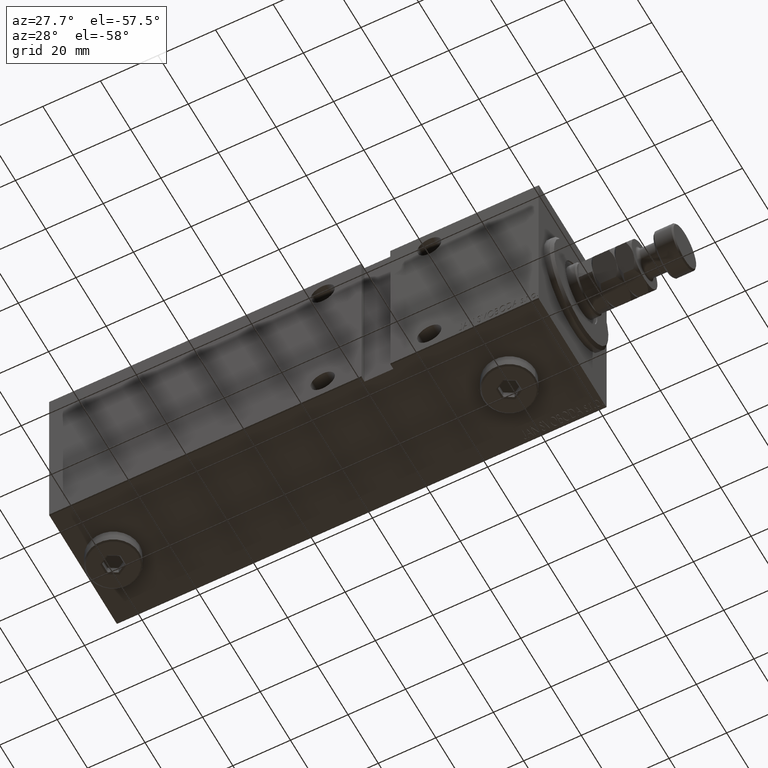
[diagram: clean part render]
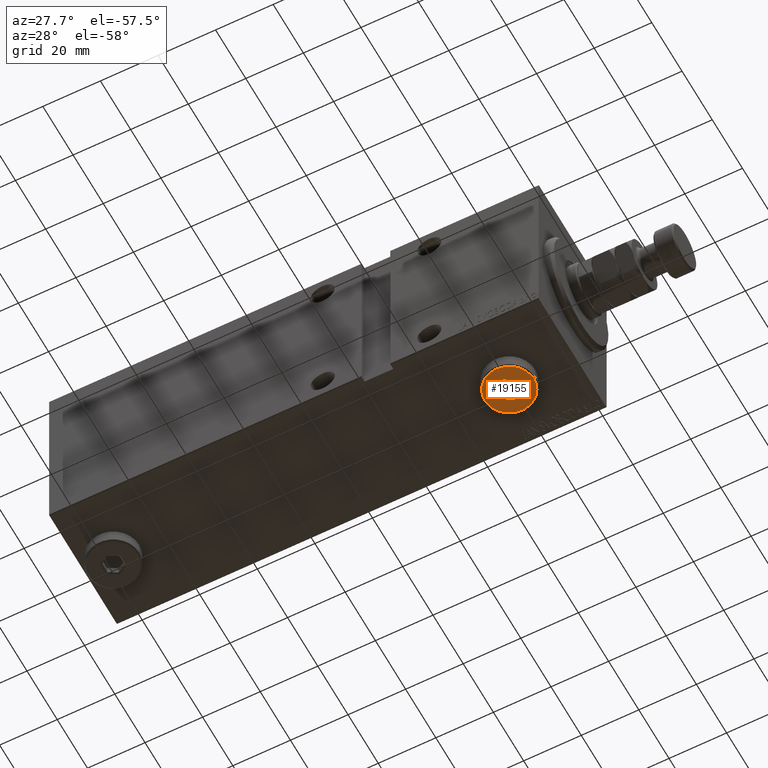
[diagram: same view with one face highlighted and labeled with its STEP entity id]
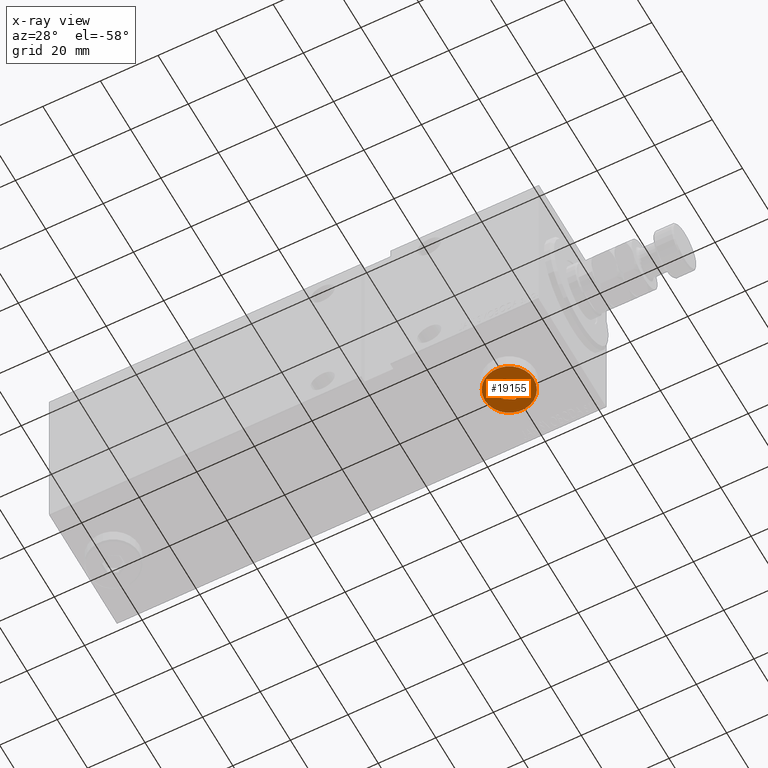
[diagram: x-ray of the same camera — body ghosted, the highlighted face saturated]
A machine part, auxiliary view. The second image highlights one B-rep face of the part: STEP entity #19155.
The next image is the same camera in x-ray: the body ghosted, the highlighted face saturated — about 0% of this face is hidden behind the body in this view.
In plain terms, the highlighted planar face has unit normal (-0, 0, -1).
Its self-contained STEP definition (entity closure, byte-faithful):
#44 = VERTEX_POINT ( 'NONE', #20382 ) ;
#2049 = DIRECTION ( 'NONE',  ( 0.8660254037844387076, -0.4999999999999998890, 0.000000000000000000 ) ) ;
#2520 = CARTESIAN_POINT ( 'NONE',  ( 3.250000000000003109, 2.165063509461103042, 5.000000000000000000 ) ) ;
#3235 = DIRECTION ( 'NONE',  ( 0.000000000000000000, 0.000000000000000000, 1.000000000000000000 ) ) ;
#5342 = VERTEX_POINT ( 'NONE', #37718 ) ;
#5377 = VECTOR ( 'NONE', #10595, 1000.000000000000000 ) ;
#5770 = LINE ( 'NONE', #33800, #17265 ) ;
#6862 = EDGE_CURVE ( 'NONE', #37103, #44, #15785, .T. ) ;
#7491 = ORIENTED_EDGE ( 'NONE', *, *, #6862, .T. ) ;
#7615 = EDGE_CURVE ( 'NONE', #23677, #16038, #37997, .T. ) ;
#8162 = VECTOR ( 'NONE', #36579, 1000.000000000000000 ) ;
#8387 = AXIS2_PLACEMENT_3D ( 'NONE', #20947, #3235, #17473 ) ;
#8593 = DIRECTION ( 'NONE',  ( -0.8660254037844385966, 0.4999999999999999445, 0.000000000000000000 ) ) ;
#8803 = EDGE_LOOP ( 'NONE', ( #19018, #7491, #14626, #25652, #30364, #36716 ) ) ;
#10595 = DIRECTION ( 'NONE',  ( -0.8660254037844387076, -0.4999999999999998890, 0.000000000000000000 ) ) ;
#10887 = EDGE_CURVE ( 'NONE', #44265, #37103, #34602, .T. ) ;
#11266 = CARTESIAN_POINT ( 'NONE',  ( -3.500000000000006661, -2.020725942163694278, 5.000000000000000000 ) ) ;
#11389 = CIRCLE ( 'NONE', #29276, 8.500000000000010658 ) ;
#12113 = VECTOR ( 'NONE', #41043, 1000.000000000000000 ) ;
#12303 = EDGE_CURVE ( 'NONE', #5342, #44265, #5770, .T. ) ;
#14626 = ORIENTED_EDGE ( 'NONE', *, *, #38281, .T. ) ;
#15785 = LINE ( 'NONE', #33538, #8162 ) ;
#15827 = DIRECTION ( 'NONE',  ( 0.000000000000000000, 0.000000000000000000, 1.000000000000000000 ) ) ;
#16038 = VERTEX_POINT ( 'NONE', #39523 ) ;
#16841 = DIRECTION ( 'NONE',  ( 0.000000000000000000, 1.000000000000000000, 0.000000000000000000 ) ) ;
#17231 = VECTOR ( 'NONE', #16841, 1000.000000000000000 ) ;
#17265 = VECTOR ( 'NONE', #8593, 1000.000000000000114 ) ;
#17473 = DIRECTION ( 'NONE',  ( 1.000000000000000000, 0.000000000000000000, -0.000000000000000000 ) ) ;
#17827 = CARTESIAN_POINT ( 'NONE',  ( 0.2500000000000027756, -3.897114317029979347, 5.000000000000000000 ) ) ;
#18262 = EDGE_CURVE ( 'NONE', #27766, #5342, #42600, .T. ) ;
#19018 = ORIENTED_EDGE ( 'NONE', *, *, #10887, .T. ) ;
#19030 = EDGE_CURVE ( 'NONE', #16038, #23677, #11389, .T. ) ;
#19050 = EDGE_CURVE ( 'NONE', #37226, #27766, #45023, .T. ) ;
#19088 = CARTESIAN_POINT ( 'NONE',  ( 3.500000000000006661, -2.020725942163693833, 5.000000000000000000 ) ) ;
#19155 = ADVANCED_FACE ( 'NONE', ( #45965, #23989 ), #42468, .T. ) ;
#20382 = CARTESIAN_POINT ( 'NONE',  ( 1.590596867181068292E-15, 4.041451884327386779, 5.000000000000000000 ) ) ;
#20947 = CARTESIAN_POINT ( 'NONE',  ( 0.000000000000000000, 0.000000000000000000, 5.000000000000000000 ) ) ;
#23677 = VERTEX_POINT ( 'NONE', #27358 ) ;
#23989 = FACE_OUTER_BOUND ( 'NONE', #37096, .T. ) ;
#25315 = AXIS2_PLACEMENT_3D ( 'NONE', #29713, #26198, #25748 ) ;
#25652 = ORIENTED_EDGE ( 'NONE', *, *, #19050, .T. ) ;
#25748 = DIRECTION ( 'NONE',  ( 1.000000000000000000, 0.000000000000000000, 0.000000000000000000 ) ) ;
#26198 = DIRECTION ( 'NONE',  ( 0.000000000000000000, 0.000000000000000000, 1.000000000000000000 ) ) ;
#26291 = CARTESIAN_POINT ( 'NONE',  ( 3.500000000000006661, 2.020725942163694722, 5.000000000000000000 ) ) ;
#27358 = CARTESIAN_POINT ( 'NONE',  ( 8.500000000000010658, 1.071565949253934716E-15, 5.000000000000000000 ) ) ;
#27481 = LINE ( 'NONE', #2520, #42908 ) ;
#27766 = VERTEX_POINT ( 'NONE', #19088 ) ;
#29276 = AXIS2_PLACEMENT_3D ( 'NONE', #30758, #15827, #37550 ) ;
#29713 = CARTESIAN_POINT ( 'NONE',  ( 0.000000000000000000, 0.000000000000000000, 5.000000000000000000 ) ) ;
#30364 = ORIENTED_EDGE ( 'NONE', *, *, #18262, .T. ) ;
#30758 = CARTESIAN_POINT ( 'NONE',  ( 0.000000000000000000, 0.000000000000000000, 5.000000000000000000 ) ) ;
#31079 = CARTESIAN_POINT ( 'NONE',  ( -3.500000000000006661, 1.732050807568878081, 5.000000000000000000 ) ) ;
#33538 = CARTESIAN_POINT ( 'NONE',  ( -0.2500000000000027756, 3.897114317029978459, 5.000000000000000000 ) ) ;
#33800 = CARTESIAN_POINT ( 'NONE',  ( -3.250000000000003109, -2.165063509461102598, 5.000000000000000000 ) ) ;
#33889 = CARTESIAN_POINT ( 'NONE',  ( -3.500000000000006661, 2.020725942163692945, 5.000000000000000000 ) ) ;
#34602 = LINE ( 'NONE', #31079, #17231 ) ;
#35819 = ORIENTED_EDGE ( 'NONE', *, *, #7615, .T. ) ;
#36579 = DIRECTION ( 'NONE',  ( 0.8660254037844387076, 0.4999999999999998335, 0.000000000000000000 ) ) ;
#36716 = ORIENTED_EDGE ( 'NONE', *, *, #12303, .T. ) ;
#36943 = ORIENTED_EDGE ( 'NONE', *, *, #19030, .T. ) ;
#37096 = EDGE_LOOP ( 'NONE', ( #36943, #35819 ) ) ;
#37103 = VERTEX_POINT ( 'NONE', #33889 ) ;
#37226 = VERTEX_POINT ( 'NONE', #26291 ) ;
#37550 = DIRECTION ( 'NONE',  ( 1.000000000000000000, 0.000000000000000000, 0.000000000000000000 ) ) ;
#37718 = CARTESIAN_POINT ( 'NONE',  ( -1.006139216460143630E-15, -4.041451884327387667, 5.000000000000000000 ) ) ;
#37997 = CIRCLE ( 'NONE', #25315, 8.500000000000010658 ) ;
#38281 = EDGE_CURVE ( 'NONE', #44, #37226, #27481, .T. ) ;
#39523 = CARTESIAN_POINT ( 'NONE',  ( -8.500000000000010658, 0.000000000000000000, 5.000000000000000000 ) ) ;
#41043 = DIRECTION ( 'NONE',  ( 0.000000000000000000, -1.000000000000000000, 0.000000000000000000 ) ) ;
#42468 = PLANE ( 'NONE',  #8387 ) ;
#42600 = LINE ( 'NONE', #17827, #5377 ) ;
#42908 = VECTOR ( 'NONE', #2049, 1000.000000000000000 ) ;
#44265 = VERTEX_POINT ( 'NONE', #11266 ) ;
#44332 = CARTESIAN_POINT ( 'NONE',  ( 3.500000000000006661, -1.732050807568878303, 5.000000000000000000 ) ) ;
#45023 = LINE ( 'NONE', #44332, #12113 ) ;
#45965 = FACE_BOUND ( 'NONE', #8803, .T. ) ;